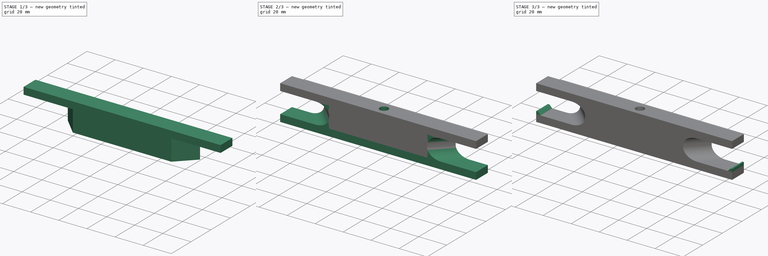
[diagram: build sequence overview — one tinted view per stage of 3, left to right]
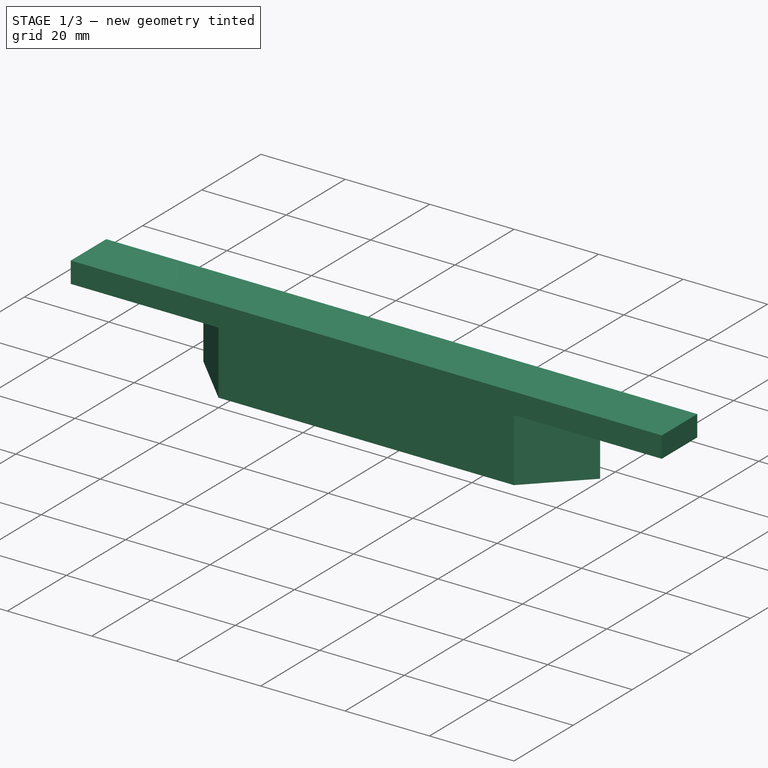
[diagram: stage 1 of 3 — iso view after this stage's code; geometry added in this stage tinted green]
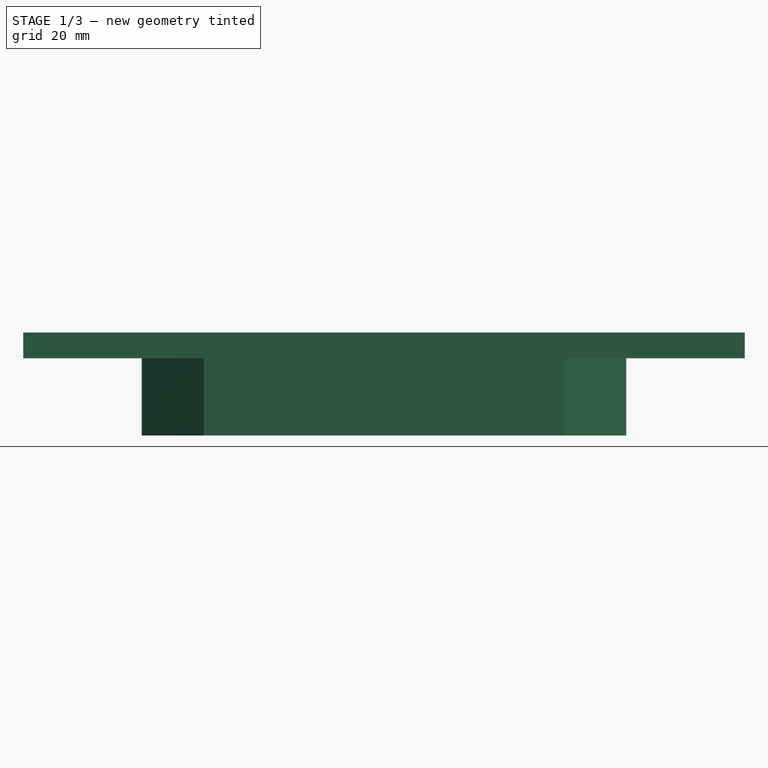
[diagram: stage 1 of 3 — front view after this stage's code; geometry added in this stage tinted green]
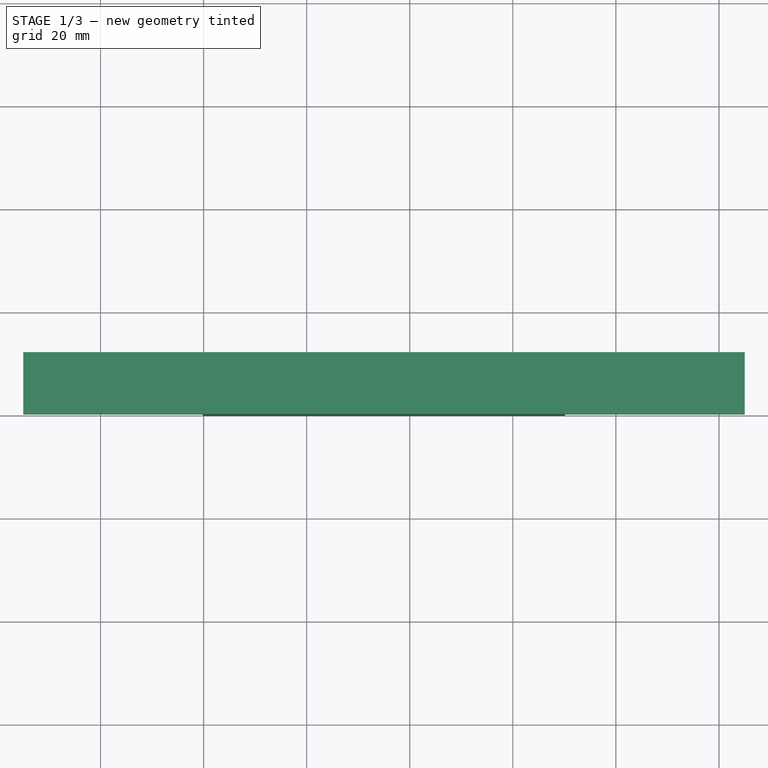
[diagram: stage 1 of 3 — top view after this stage's code; geometry added in this stage tinted green]
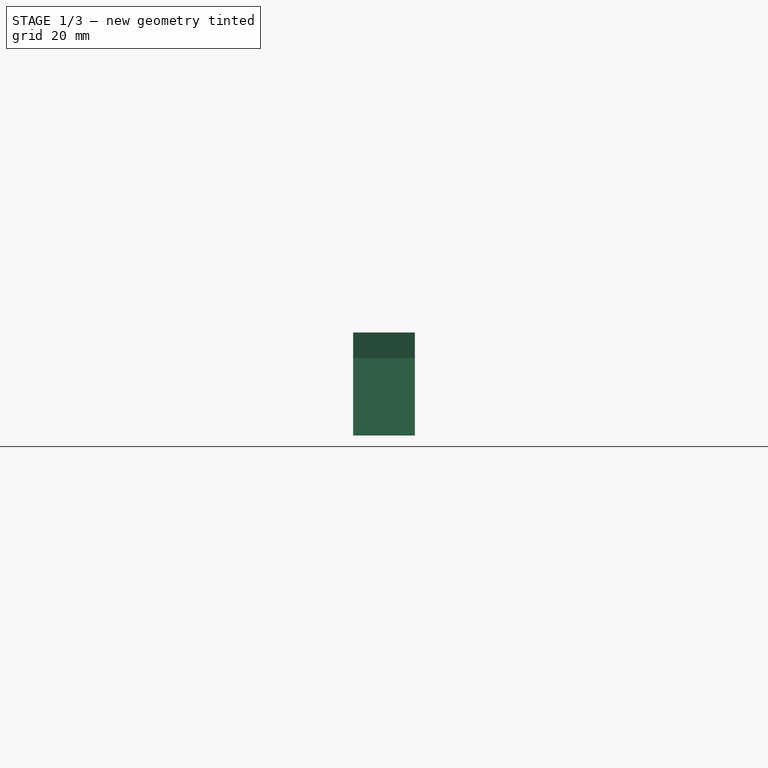
[diagram: stage 1 of 3 — right view after this stage's code; geometry added in this stage tinted green]
FCSTD DOCUMENT  (FreeCAD 0.21R33771 (Git))
Label: Holder_v2
License: All rights reserved
LicenseURL: https://en.wikipedia.org/wiki/All_rights_reserved
objects: Sketcher::SketchObject×5, PartDesign::Pad×4, PartDesign::Fillet×1, PartDesign::Pocket×1, PartDesign::Chamfer×1, PartDesign::Body×1
note: 20 computed .brp shape members not serialized (recipe doc carries the construction recipe); baked Part::Feature solids carry a one-line shape summary decoded from their .brp

FEATURE [Sketcher::SketchObject] Sketch
  FullyConstrained = true
  MapMode = 5
  Support = -> [XY_Plane]
  sketch-geometry (4):
    g0: LineSegment StartX=0 StartY=0 StartZ=0 EndX=70 EndY=0 EndZ=0
    g1: LineSegment StartX=70 StartY=0 StartZ=0 EndX=82 EndY=12 EndZ=0
    g2: LineSegment StartX=82 StartY=12 StartZ=0 EndX=-12 EndY=12 EndZ=0
    g3: LineSegment StartX=-12 StartY=12 StartZ=0 EndX=0 EndY=0 EndZ=0
  constraints (11):
    c: Horizontal(g0)
    c: Coincident(g0,g-1)
    c: DistanceX(g0,g0) = 70
    c: Coincident(g1,g0)
    c: Coincident(g2,g1)
    c: Horizontal(g2)
    c: Coincident(g3,g2)
    c: Coincident(g3,g0)
    c: Angle(g1,g-1) = 2.35619
    c: Angle(g-1,g3) = 2.35619
    c: DistanceY(g1,g1) = 12
FEATURE [PartDesign::Pad] Pad
  Direction = (0,0,1)
  Length = 15
  Length2 = 10
  Profile = -> Sketch
  ReferenceAxis = -> Sketch [N_Axis]
  Type = 0
FEATURE [Sketcher::SketchObject] Sketch001
  ExternalGeometry = -> [Pad]
  FullyConstrained = true
  MapMode = 5
  Placement = pos=(0,0,15) rot=(0,0,1;0rad)
  Support = -> [Pad]
  sketch-geometry (6):
    g0: LineSegment StartX=-35 StartY=12 StartZ=0 EndX=105 EndY=12 EndZ=0
    g1: LineSegment StartX=105 StartY=12 StartZ=0 EndX=105 EndY=0 EndZ=0
    g2: LineSegment StartX=105 StartY=0 StartZ=0 EndX=-35 EndY=0 EndZ=0
    g3: LineSegment StartX=-35 StartY=0 StartZ=0 EndX=-35 EndY=12 EndZ=0
    g4: LineSegment StartX=-12 StartY=12 StartZ=0 EndX=-35 EndY=12 EndZ=0
    g5: LineSegment StartX=82 StartY=12 StartZ=0 EndX=105 EndY=12 EndZ=0
  constraints (17):
    c: Coincident(g0,g1)
    c: Coincident(g1,g2)
    c: Coincident(g2,g3)
    c: Coincident(g3,g0)
    c: Horizontal(g0)
    c: Horizontal(g2)
    c: Vertical(g1)
    c: Vertical(g3)
    c: PointOnObject(g1,g-1)
    c: Coincident(g4,g-3)
    c: Horizontal(g4)
    c: Coincident(g5,g-3)
    c: PointOnObject(g5,g1)
    c: Horizontal(g5)
    c: Equal(g5,g4)
    c: DistanceX(g2,g2) = 140
    c: Coincident(g4,g0)
FEATURE [PartDesign::Pad] Pad001
  BaseFeature = -> Pad
  Direction = (0,0,1)
  Length = 5
  Length2 = 10
  Profile = -> Sketch001
  ReferenceAxis = -> Sketch001 [N_Axis]
  Type = 0
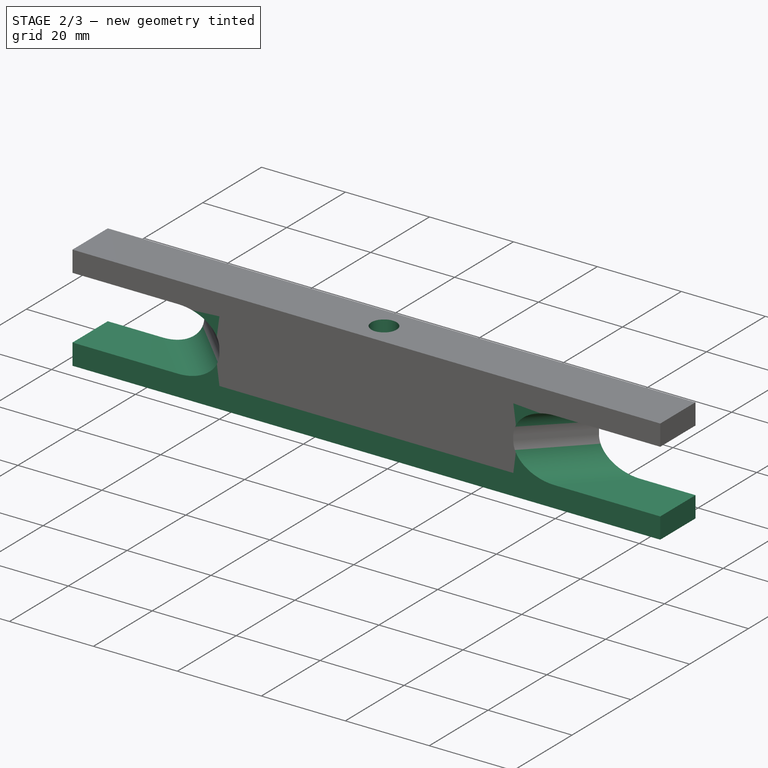
[diagram: stage 2 of 3 — iso view after this stage's code; geometry added in this stage tinted green]
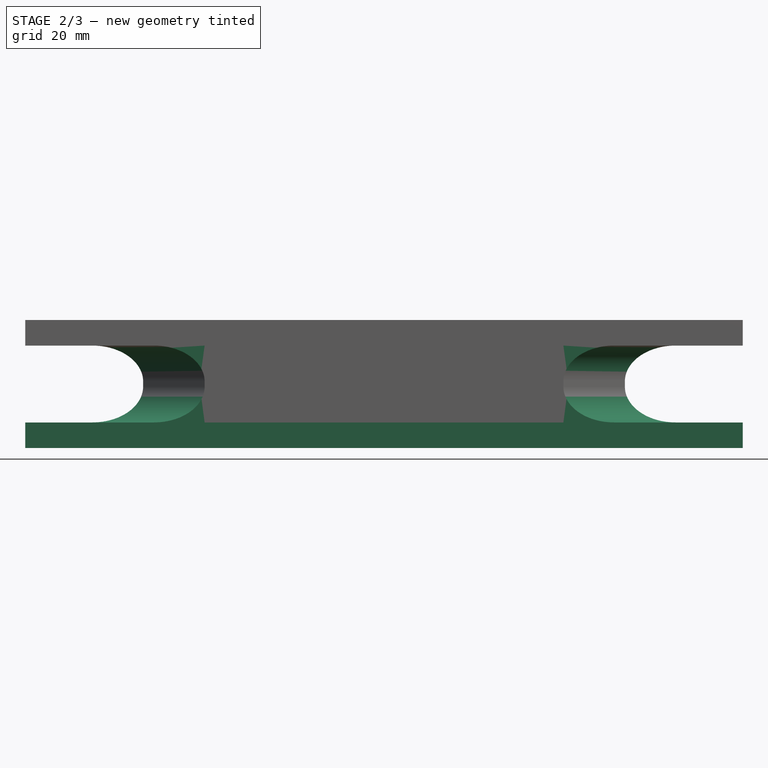
[diagram: stage 2 of 3 — front view after this stage's code; geometry added in this stage tinted green]
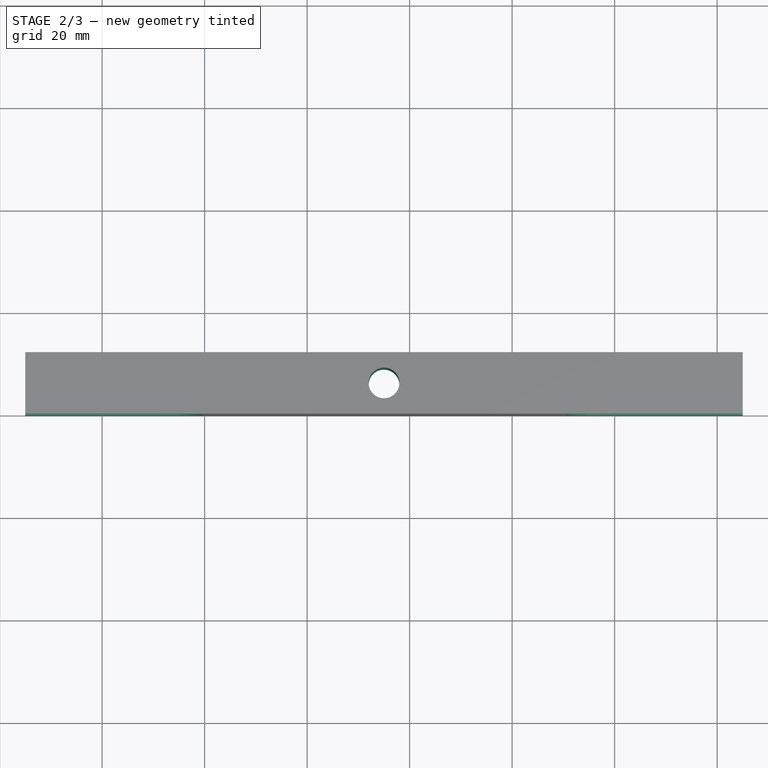
[diagram: stage 2 of 3 — top view after this stage's code; geometry added in this stage tinted green]
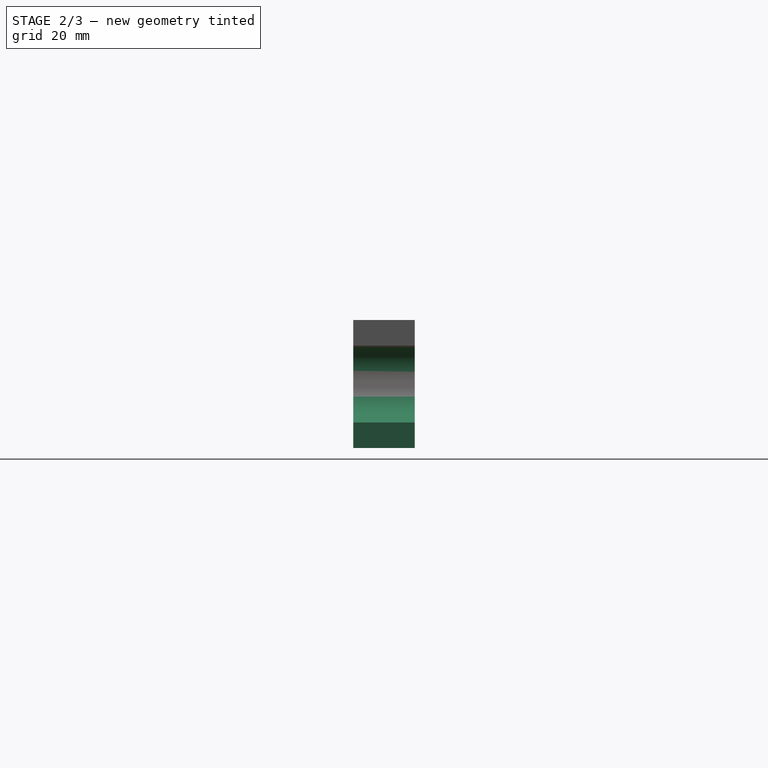
[diagram: stage 2 of 3 — right view after this stage's code; geometry added in this stage tinted green]
FEATURE [Sketcher::SketchObject] Sketch002
  ExternalGeometry = -> [Pad001]
  FullyConstrained = true
  MapMode = 5
  Placement = pos=(0,0,0) rot=(1,0,0;3.14159rad)
  Support = -> [Pad001]
  sketch-geometry (4):
    g0: LineSegment StartX=-35 StartY=-12 StartZ=0 EndX=105 EndY=-12 EndZ=0
    g1: LineSegment StartX=105 StartY=-12 StartZ=0 EndX=105 EndY=0 EndZ=0
    g2: LineSegment StartX=105 StartY=0 StartZ=0 EndX=-35 EndY=0 EndZ=0
    g3: LineSegment StartX=-35 StartY=0 StartZ=0 EndX=-35 EndY=-12 EndZ=0
  constraints (10):
    c: Coincident(g0,g1)
    c: Coincident(g1,g2)
    c: Coincident(g2,g3)
    c: Coincident(g3,g0)
    c: Horizontal(g0)
    c: Horizontal(g2)
    c: Vertical(g1)
    c: Vertical(g3)
    c: Coincident(g0,g-3)
    c: Coincident(g1,g-4)
FEATURE [PartDesign::Pad] Pad002
  BaseFeature = -> Pad001
  Direction = (0,0,-1)
  Length = 5
  Length2 = 10
  Profile = -> Sketch002
  ReferenceAxis = -> Sketch002 [N_Axis]
  Type = 0
FEATURE [PartDesign::Fillet] Fillet
  Base = -> Pad002 [Edge25,Edge23,Edge13,Edge19]
  BaseFeature = -> Pad002
  Radius = 7
  SupportTransform = false
  UseAllEdges = false
FEATURE [Sketcher::SketchObject] Sketch003
  ExternalGeometry = -> [Fillet]
  FullyConstrained = true
  MapMode = 5
  Placement = pos=(0,0,20) rot=(0,0,1;0rad)
  Support = -> [Fillet]
  sketch-geometry (4):
    g0: Circle CenterX=35 CenterY=6 CenterZ=0 NormalX=0 NormalY=0 NormalZ=1 AngleXU=0 Radius=3
    g1: LineSegment StartX=-35 StartY=12 StartZ=0 EndX=35 EndY=6 EndZ=0
    g2: LineSegment StartX=35 StartY=6 StartZ=0 EndX=105 EndY=12 EndZ=0
    g3: LineSegment StartX=35 StartY=6 StartZ=0 EndX=-35 EndY=9e-16 EndZ=0
  constraints (9):
    c: Coincident(g1,g-3)
    c: Coincident(g1,g0)
    c: Coincident(g2,g0)
    c: Coincident(g2,g-3)
    c: Equal(g2,g1)
    c: Coincident(g3,g0)
    c: Coincident(g3,g-4)
    c: Equal(g1,g3)
    c: Diameter(g0) = 6
FEATURE [PartDesign::Pocket] Pocket
  BaseFeature = -> Fillet
  Direction = (0,0,-1)
  Length = 5
  Length2 = 5
  Profile = -> Sketch003
  ReferenceAxis = -> Sketch003 [N_Axis]
  Type = 1
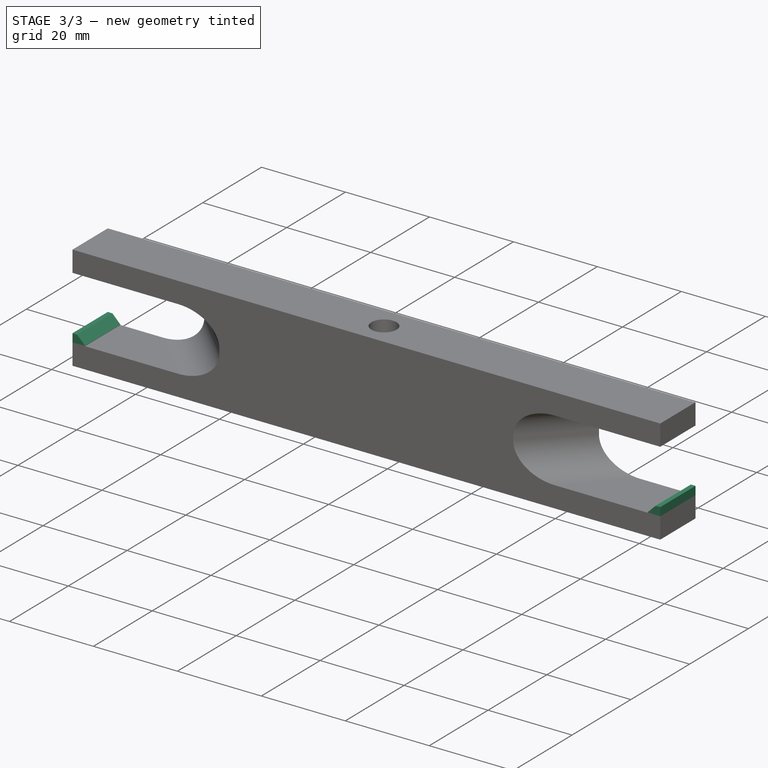
[diagram: stage 3 of 3 — iso view after this stage's code; geometry added in this stage tinted green]
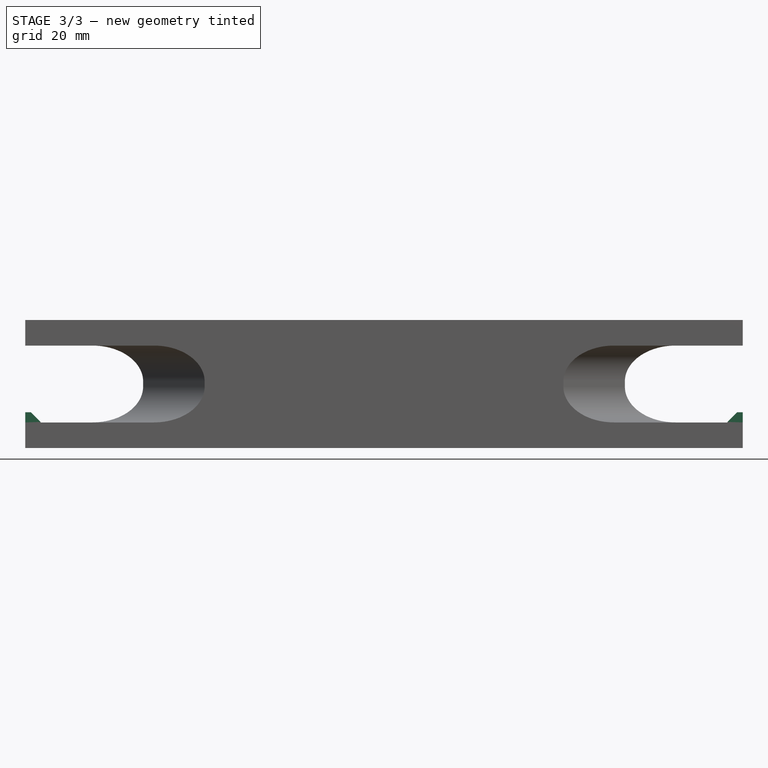
[diagram: stage 3 of 3 — front view after this stage's code; geometry added in this stage tinted green]
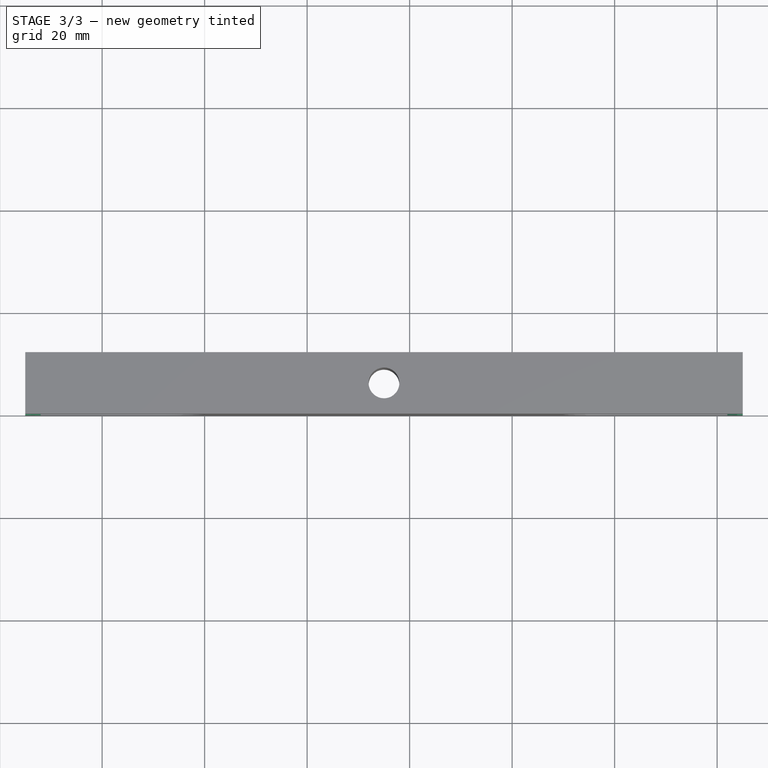
[diagram: stage 3 of 3 — top view after this stage's code; geometry added in this stage tinted green]
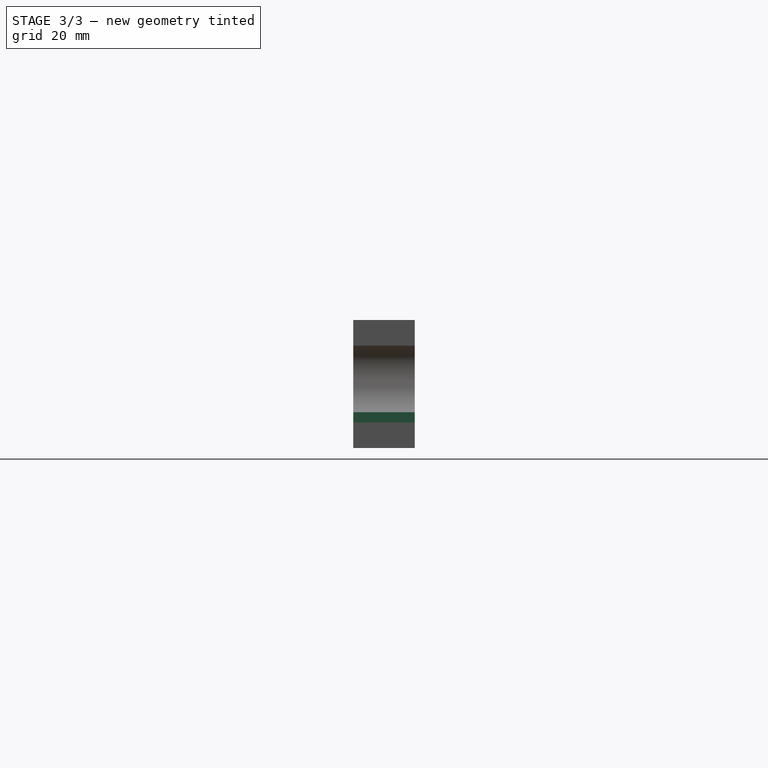
[diagram: stage 3 of 3 — right view after this stage's code; geometry added in this stage tinted green]
FEATURE [Sketcher::SketchObject] Sketch004
  ExternalGeometry = -> [Pocket]
  FullyConstrained = true
  MapMode = 5
  Support = -> [Pocket]
  sketch-geometry (8):
    g0: LineSegment StartX=-35 StartY=12 StartZ=0 EndX=-32 EndY=12 EndZ=0
    g1: LineSegment StartX=-32 StartY=12 StartZ=0 EndX=-32 EndY=0 EndZ=0
    g2: LineSegment StartX=-32 StartY=0 StartZ=0 EndX=-35 EndY=0 EndZ=0
    g3: LineSegment StartX=-35 StartY=0 StartZ=0 EndX=-35 EndY=12 EndZ=0
    g4: LineSegment StartX=105 StartY=12 StartZ=0 EndX=102 EndY=12 EndZ=0
    g5: LineSegment StartX=102 StartY=12 StartZ=0 EndX=102 EndY=0 EndZ=0
    g6: LineSegment StartX=102 StartY=0 StartZ=0 EndX=105 EndY=0 EndZ=0
    g7: LineSegment StartX=105 StartY=0 StartZ=0 EndX=105 EndY=12 EndZ=0
  constraints (20):
    c: Coincident(g0,g1)
    c: Coincident(g1,g2)
    c: Coincident(g2,g3)
    c: Coincident(g3,g0)
    c: Horizontal(g0)
    c: Horizontal(g2)
    c: Vertical(g1)
    c: Coincident(g0,g-3)
    c: Coincident(g4,g5)
    c: Coincident(g5,g6)
    c: Coincident(g6,g7)
    c: Coincident(g7,g4)
    c: Horizontal(g4)
    c: Horizontal(g6)
    c: Vertical(g5)
    c: Coincident(g4,g-4)
    c: Coincident(g6,g-4)
    c: Coincident(g2,g-3)
    c: Equal(g0,g4)
    c: DistanceX(g0,g0) = 3
FEATURE [PartDesign::Pad] Pad003
  BaseFeature = -> Pocket
  Direction = (0,0,1)
  Length = 2
  Length2 = 10
  Profile = -> Sketch004
  ReferenceAxis = -> Sketch004 [N_Axis]
  Type = 0
FEATURE [PartDesign::Chamfer] Chamfer
  Angle = 45
  Base = -> Pad003 [Edge43,Edge72]
  BaseFeature = -> Pad003
  ChamferType = 0
  FlipDirection = false
  Size = 1.9
  Size2 = 1
  SupportTransform = false
  UseAllEdges = false
FEATURE [PartDesign::Body] Body  label="Körper"
  Group = -> [Sketch,Pad,Sketch001,Pad001,Sketch002,Pad002,Fillet,Sketch003,Pocket,Sketch004,Pad003,Chamfer]
  Origin = -> Origin
  Tip = -> Chamfer
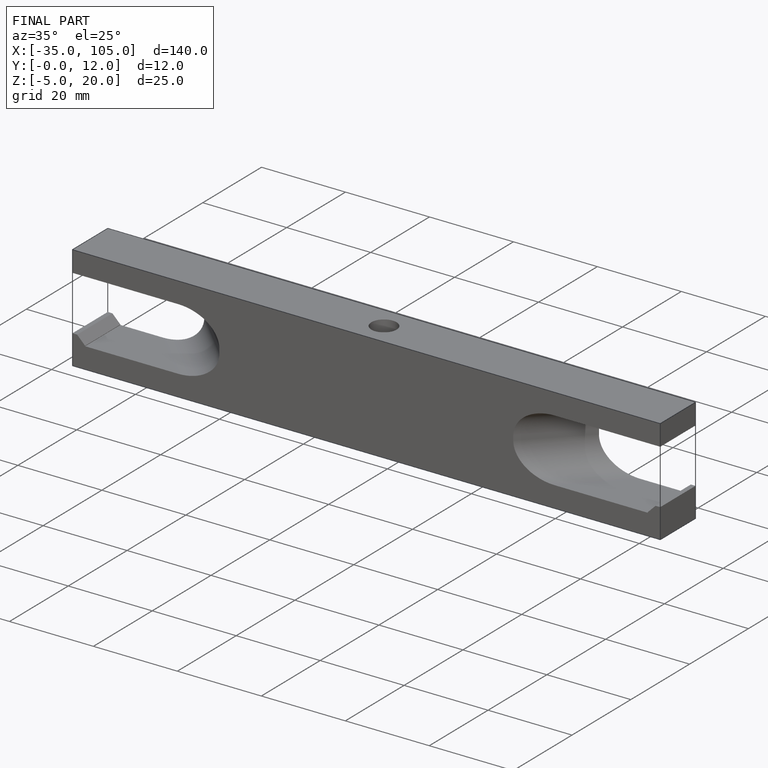
[diagram: finished part — iso view with bounding-box wireframe]
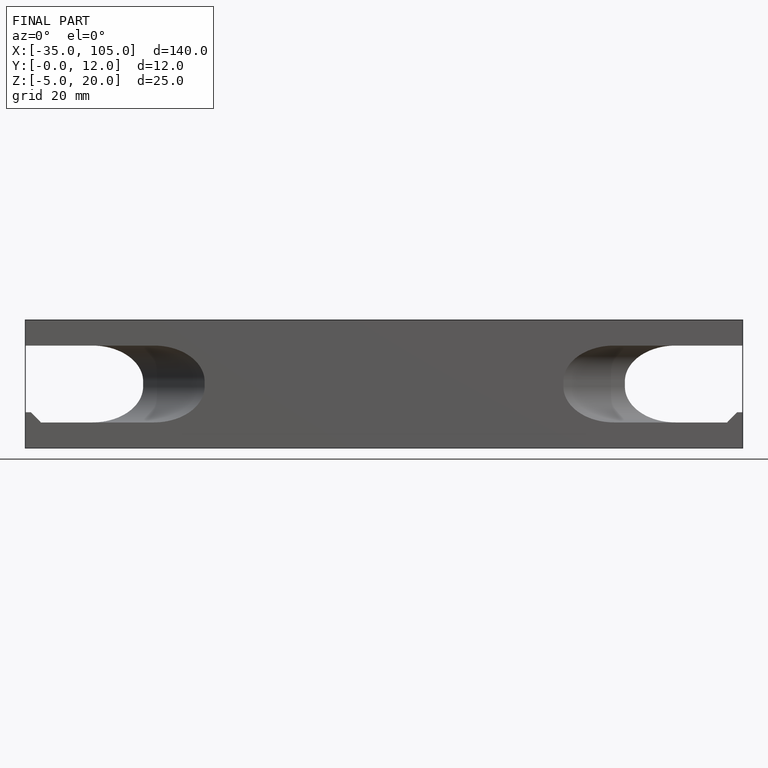
[diagram: finished part — front view with bounding-box wireframe]
